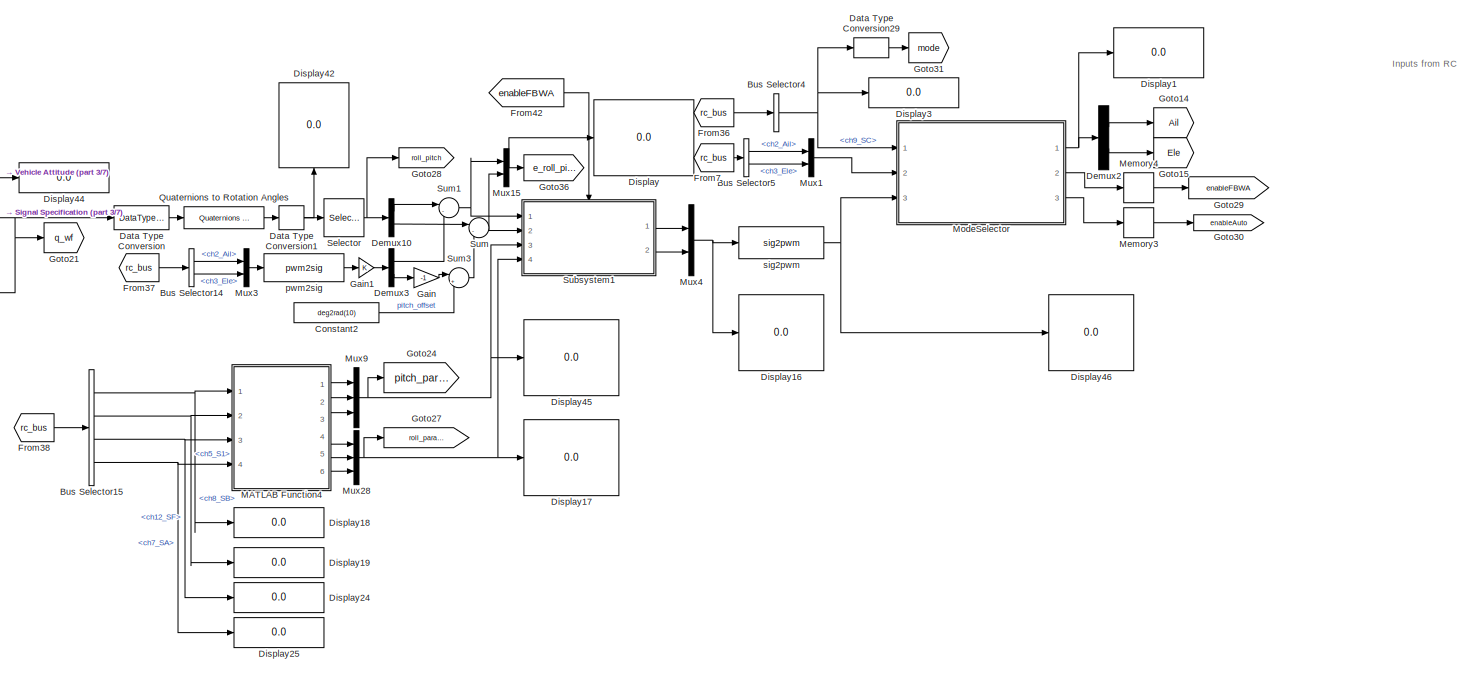
[diagram: root canvas - part 1/7, top left region]
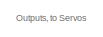
[diagram: root canvas - part 2/7, top right region]
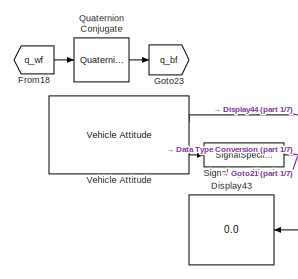
[diagram: root canvas - part 3/7, top left region]
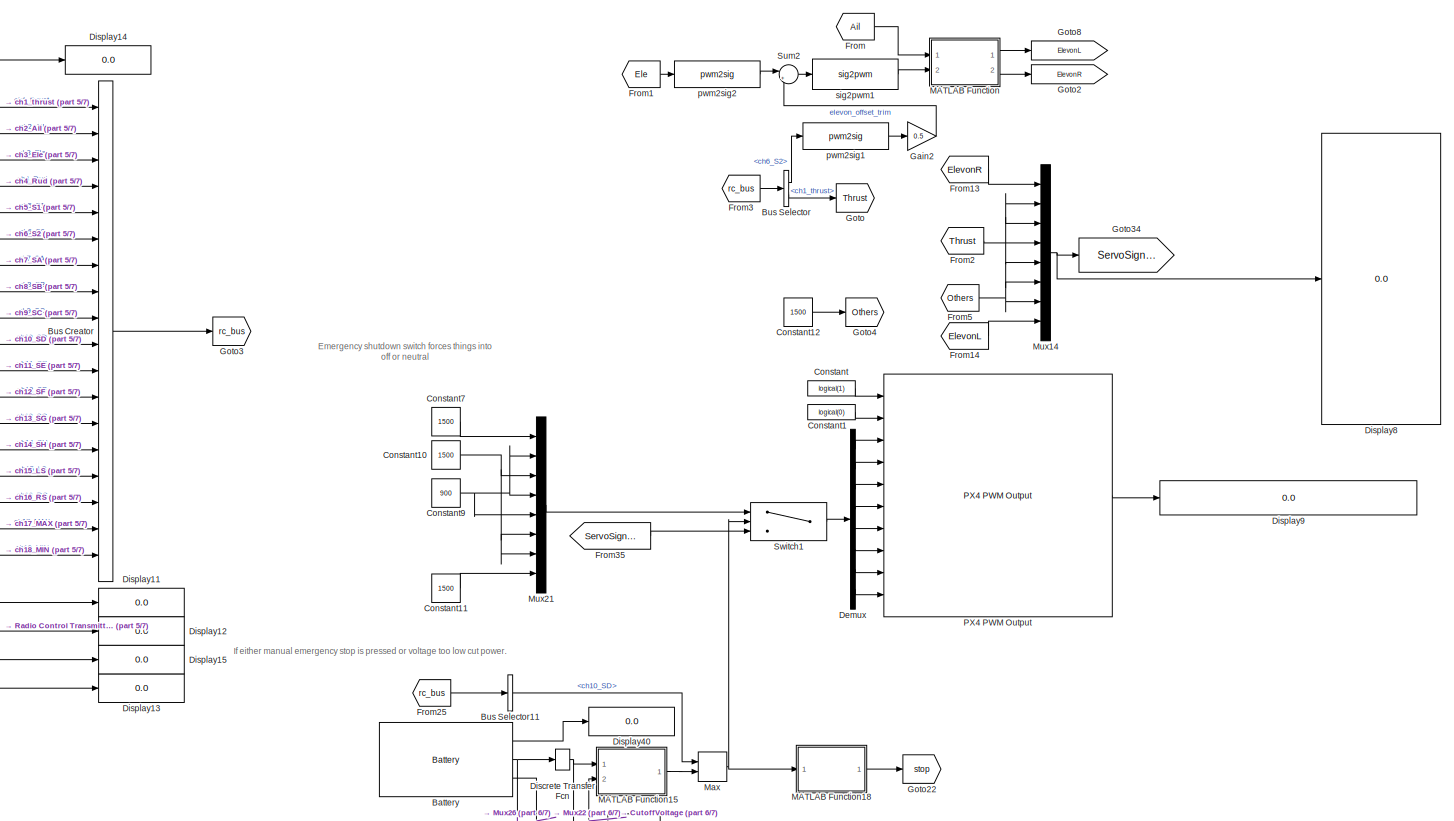
[diagram: root canvas - part 4/7, top right region]
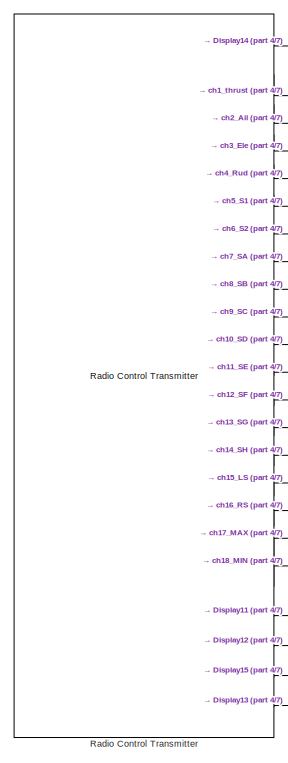
[diagram: root canvas - part 5/7, top center region]
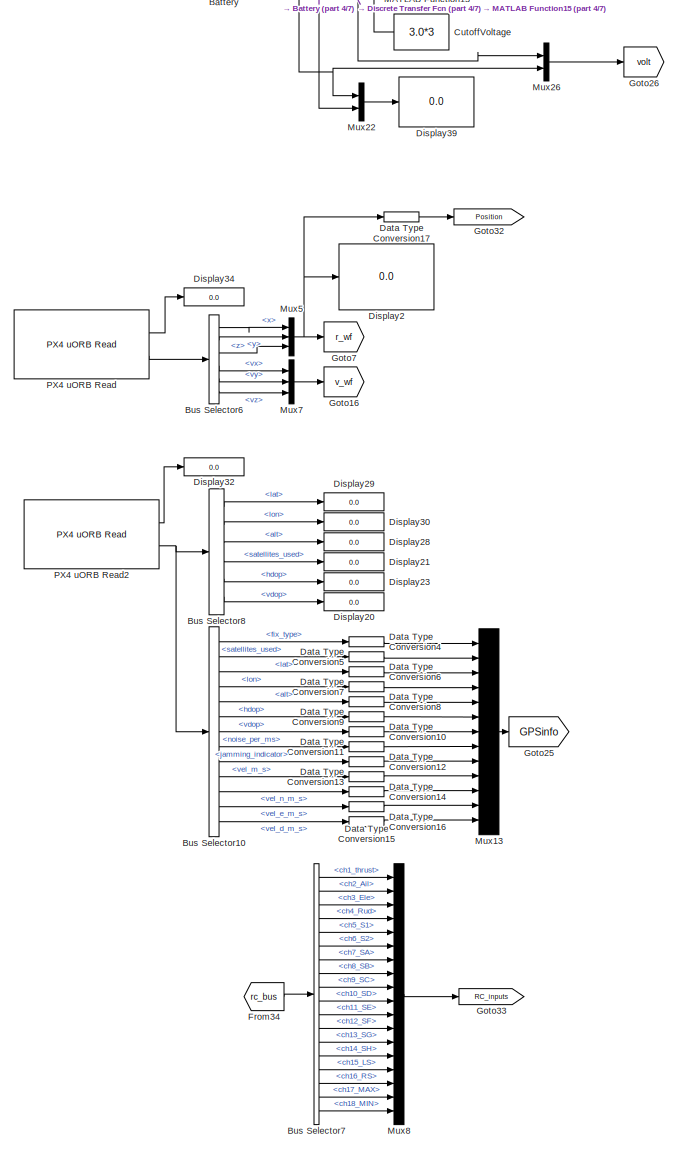
[diagram: root canvas - part 6/7, bottom right region]
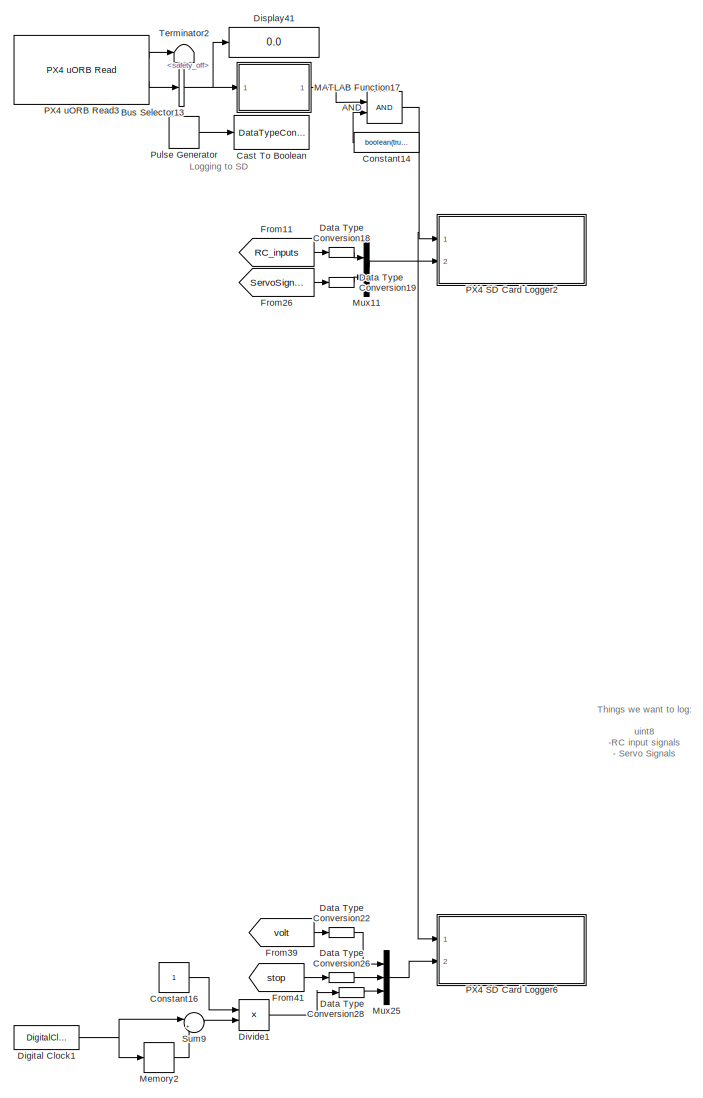
[diagram: root canvas - part 7/7, bottom right region]
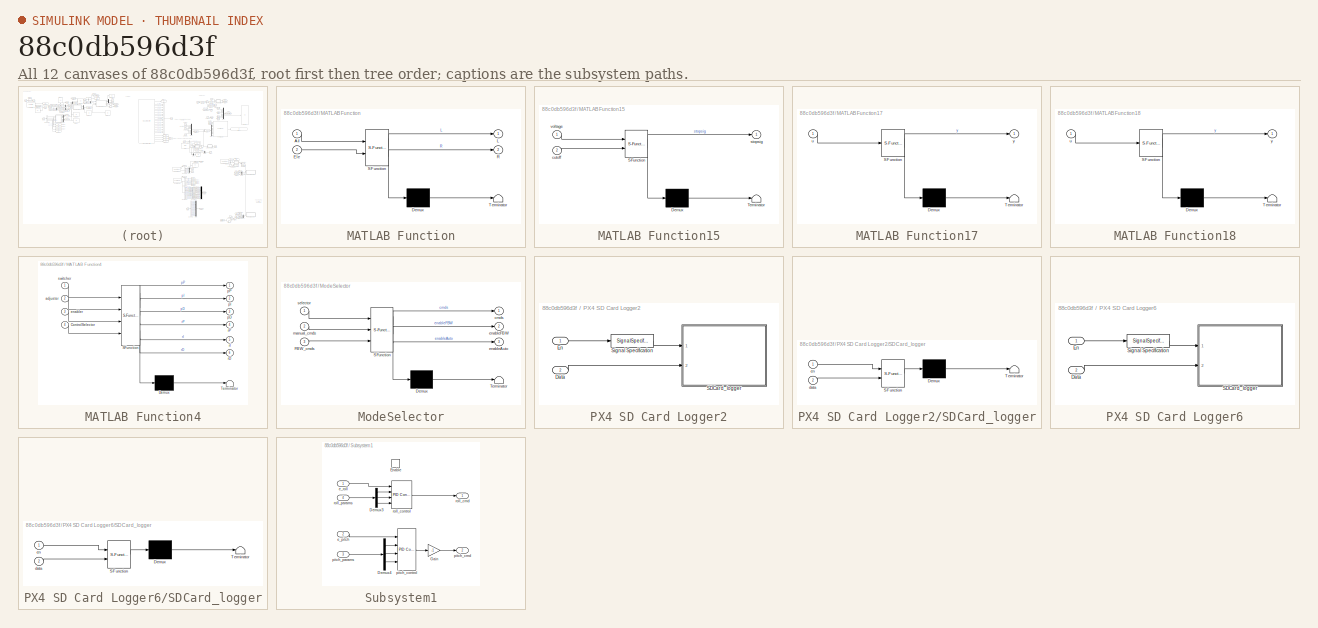
[diagram: thumbnail index - all 12 canvases of the model, root first then tree order]
MODEL slx_88c0db596d3f
KIND model
CONFIG AbsTol = auto
CONFIG EnableMultiTasking = on
CONFIG FixedStep = Ts
CONFIG MaxStep = auto
CONFIG MinStep = auto
CONFIG RelTol = 1e-3
CONFIG SampleTimeConstraint = Unconstrained
CONFIG Solver = FixedStepAuto
CONFIG SolverName = FixedStepAuto
CONFIG StartTime = 0.0
CONFIG StopTime = inf
BLOCK [Logic] AND
  AllPortsSameDT = off
  IconShape = distinctive
  OutDataTypeStr = boolean
  Ports = [2, 1]
BLOCK [Reference] Battery  REF=px4Sensorslib/Battery
  Ports = [0, 3]
  SourceBlock = px4Sensorslib/Battery
  SourceProductName = Embedded Coder Support Package for PX4 Autopilots
  SourceType = PX4 Battery
BLOCK [BusCreator] Bus Creator
  DisplayOption = bar
  InheritFromInputs = on
  Inputs = 18
  Ports = [18, 1]
BLOCK [BusSelector] Bus Selector
  OutputAsBus = off
  OutputSignals = ch6_S2,ch1_thrust
  Ports = [1, 2]
BLOCK [BusSelector] Bus Selector10
  Commented = on
  OutputAsBus = off
  OutputSignals = fix_type,satellites_used,lat,lon,alt,hdop,vdop,noise_per_ms,jamming_indicator,vel_m_s,vel_n_m_s,vel_e_m_s,vel_d_m_s
  Ports = [1, 13]
BLOCK [BusSelector] Bus Selector11
  OutputAsBus = off
  OutputSignals = ch10_SD
  Ports = [1, 1]
BLOCK [BusSelector] Bus Selector13
  OutputAsBus = off
  OutputSignals = safety_off
  Ports = [1, 1]
BLOCK [BusSelector] Bus Selector14
  OutputAsBus = off
  OutputSignals = ch2_Ail,ch3_Ele
  Ports = [1, 2]
BLOCK [BusSelector] Bus Selector15
  OutputAsBus = off
  OutputSignals = ch8_SB,ch5_S1,ch12_SF,ch7_SA
  Ports = [1, 4]
BLOCK [BusSelector] Bus Selector4
  OutputAsBus = off
  OutputSignals = ch9_SC
  Ports = [1, 1]
BLOCK [BusSelector] Bus Selector5
  OutputAsBus = off
  OutputSignals = ch2_Ail,ch3_Ele
  Ports = [1, 2]
BLOCK [BusSelector] Bus Selector6
  OutputAsBus = off
  OutputSignals = x,y,z,vx,vy,vz
  Ports = [1, 6]
BLOCK [BusSelector] Bus Selector7
  OutputAsBus = off
  OutputSignals = ch1_thrust,ch2_Ail,ch3_Ele,ch4_Rud,ch5_S1,ch6_S2,ch7_SA,ch8_SB,ch9_SC,ch10_SD,ch11_SE,ch12_SF,ch13_SG,ch14_SH,ch15_LS,ch16_RS,ch17_MAX,ch18_MIN
  Ports = [1, 18]
BLOCK [BusSelector] Bus Selector8
  Commented = on
  OutputAsBus = off
  OutputSignals = lat,lon,alt,satellites_used,hdop,vdop
  Ports = [1, 6]
BLOCK [DataTypeConversion] Cast To Boolean
  Commented = on
  OutDataTypeStr = boolean
  RndMeth = Floor
  SaturateOnIntegerOverflow = off
BLOCK [Constant] Constant
  Value = logical(1)
BLOCK [Constant] Constant1
  Value = logical(0)
BLOCK [Constant] Constant10
  OutDataTypeStr = uint16
  Value = 1500
BLOCK [Constant] Constant11
  OutDataTypeStr = uint16
  Value = 1500
BLOCK [Constant] Constant12
  OutDataTypeStr = uint16
  SampleTime = Ts
  Value = 1500
BLOCK [Constant] Constant14
  SampleTime = Ts
  Value = boolean(true)
BLOCK [Constant] Constant16
  SampleTime = Ts
BLOCK [Constant] Constant2
  OutDataTypeStr = single
  Value = deg2rad(10)
BLOCK [Constant] Constant7
  OutDataTypeStr = uint16
  Value = 1500
BLOCK [Constant] Constant9
  OutDataTypeStr = uint16
  Value = 900
BLOCK [Constant] CutoffVoltage
  OutDataTypeStr = single
  SampleTime = Ts
  Value = 3.0*3
BLOCK [DataTypeConversion] Data Type Conversion
  OutDataTypeStr = double
  RndMeth = Floor
  SaturateOnIntegerOverflow = off
BLOCK [DataTypeConversion] Data Type Conversion1
  OutDataTypeStr = single
  RndMeth = Floor
  SaturateOnIntegerOverflow = off
BLOCK [DataTypeConversion] Data Type Conversion10
  Commented = on
  OutDataTypeStr = single
  RndMeth = Floor
  SaturateOnIntegerOverflow = off
BLOCK [DataTypeConversion] Data Type Conversion11
  Commented = on
  OutDataTypeStr = single
  RndMeth = Floor
  SaturateOnIntegerOverflow = off
BLOCK [DataTypeConversion] Data Type Conversion12
  Commented = on
  OutDataTypeStr = single
  RndMeth = Floor
  SaturateOnIntegerOverflow = off
BLOCK [DataTypeConversion] Data Type Conversion13
  Commented = on
  OutDataTypeStr = single
  RndMeth = Floor
  SaturateOnIntegerOverflow = off
BLOCK [DataTypeConversion] Data Type Conversion14
  Commented = on
  OutDataTypeStr = single
  RndMeth = Floor
  SaturateOnIntegerOverflow = off
BLOCK [DataTypeConversion] Data Type Conversion15
  Commented = on
  OutDataTypeStr = single
  RndMeth = Floor
  SaturateOnIntegerOverflow = off
BLOCK [DataTypeConversion] Data Type Conversion16
  Commented = on
  OutDataTypeStr = single
  RndMeth = Floor
  SaturateOnIntegerOverflow = off
BLOCK [DataTypeConversion] Data Type Conversion17
  OutDataTypeStr = single
  RndMeth = Floor
  SaturateOnIntegerOverflow = off
BLOCK [DataTypeConversion] Data Type Conversion18
  OutDataTypeStr = uint16
  RndMeth = Floor
  SaturateOnIntegerOverflow = off
BLOCK [DataTypeConversion] Data Type Conversion19
  OutDataTypeStr = uint16
  RndMeth = Floor
  SaturateOnIntegerOverflow = off
BLOCK [DataTypeConversion] Data Type Conversion22
  OutDataTypeStr = single
  RndMeth = Floor
  SaturateOnIntegerOverflow = off
BLOCK [DataTypeConversion] Data Type Conversion26
  OutDataTypeStr = single
  RndMeth = Floor
  SaturateOnIntegerOverflow = off
BLOCK [DataTypeConversion] Data Type Conversion28
  OutDataTypeStr = single
  RndMeth = Floor
  SaturateOnIntegerOverflow = off
BLOCK [DataTypeConversion] Data Type Conversion29
  OutDataTypeStr = single
  RndMeth = Floor
  SaturateOnIntegerOverflow = off
BLOCK [DataTypeConversion] Data Type Conversion4
  Commented = on
  OutDataTypeStr = single
  RndMeth = Floor
  SaturateOnIntegerOverflow = off
BLOCK [DataTypeConversion] Data Type Conversion5
  Commented = on
  OutDataTypeStr = single
  RndMeth = Floor
  SaturateOnIntegerOverflow = off
BLOCK [DataTypeConversion] Data Type Conversion6
  Commented = on
  OutDataTypeStr = single
  RndMeth = Floor
  SaturateOnIntegerOverflow = off
BLOCK [DataTypeConversion] Data Type Conversion7
  Commented = on
  OutDataTypeStr = single
  RndMeth = Floor
  SaturateOnIntegerOverflow = off
BLOCK [DataTypeConversion] Data Type Conversion8
  Commented = on
  OutDataTypeStr = single
  RndMeth = Floor
  SaturateOnIntegerOverflow = off
BLOCK [DataTypeConversion] Data Type Conversion9
  Commented = on
  OutDataTypeStr = single
  RndMeth = Floor
  SaturateOnIntegerOverflow = off
BLOCK [Demux] Demux
  DisplayOption = bar
  Outputs = 8
  Ports = [1, 8]
BLOCK [Demux] Demux10
  DisplayOption = bar
  Outputs = 2
  Ports = [1, 2]
BLOCK [Demux] Demux2
  DisplayOption = bar
  Outputs = 2
  Ports = [1, 2]
BLOCK [Demux] Demux3
  DisplayOption = bar
  Outputs = 2
  Ports = [1, 2]
BLOCK [DigitalClock] Digital Clock1
  SampleTime = Ts
BLOCK [DiscreteTransferFcn] Discrete Transfer Fcn
  Denominator = [1 -0.99]
  InputPortMap = u0
  Numerator = [1-0.99]
  Ports = [1, 1]
  SampleTime = Ts
BLOCK [Display] Display
  Decimation = 1
  Ports = [1]
BLOCK [Display] Display1
  Decimation = 1
  Ports = [1]
BLOCK [Display] Display11
  Decimation = 1
  Ports = [1]
BLOCK [Display] Display12
  Decimation = 1
  Ports = [1]
BLOCK [Display] Display13
  Decimation = 1
  Ports = [1]
BLOCK [Display] Display14
  Decimation = 1
  Ports = [1]
BLOCK [Display] Display15
  Decimation = 1
  Ports = [1]
BLOCK [Display] Display16
  Decimation = 1
  Ports = [1]
BLOCK [Display] Display17
  Decimation = 1
  Ports = [1]
BLOCK [Display] Display18
  Decimation = 1
  Ports = [1]
BLOCK [Display] Display19
  Decimation = 1
  Ports = [1]
BLOCK [Display] Display2
  Decimation = 1
  Ports = [1]
BLOCK [Display] Display20
  Commented = on
  Decimation = 1
  Ports = [1]
BLOCK [Display] Display21
  Commented = on
  Decimation = 1
  Ports = [1]
BLOCK [Display] Display23
  Commented = on
  Decimation = 1
  Ports = [1]
BLOCK [Display] Display24
  Decimation = 1
  Ports = [1]
BLOCK [Display] Display25
  Decimation = 1
  Ports = [1]
BLOCK [Display] Display28
  Commented = on
  Decimation = 1
  Ports = [1]
BLOCK [Display] Display29
  Commented = on
  Decimation = 1
  Ports = [1]
BLOCK [Display] Display3
  Decimation = 1
  Ports = [1]
BLOCK [Display] Display30
  Commented = on
  Decimation = 1
  Ports = [1]
BLOCK [Display] Display32
  Commented = on
  Decimation = 1
  Ports = [1]
BLOCK [Display] Display34
  Decimation = 1
  Ports = [1]
BLOCK [Display] Display39
  Decimation = 1
  Ports = [1]
BLOCK [Display] Display40
  Decimation = 1
  Ports = [1]
BLOCK [Display] Display41
  Decimation = 1
  Ports = [1]
BLOCK [Display] Display42
  Decimation = 1
  Ports = [1]
BLOCK [Display] Display43
  Decimation = 1
  Ports = [1]
BLOCK [Display] Display44
  Decimation = 1
  Ports = [1]
BLOCK [Display] Display45
  Decimation = 1
  Ports = [1]
BLOCK [Display] Display46
  Decimation = 1
  Ports = [1]
BLOCK [Display] Display8
  Decimation = 1
  Ports = [1]
BLOCK [Display] Display9
  Decimation = 1
  Format = binary (Stored Integer)
  Ports = [1]
BLOCK [Product] Divide1
  InputSameDT = off
  Inputs = */
  OutDataTypeStr = Inherit: Inherit via internal rule
  Ports = [2, 1]
  RndMeth = Floor
  SaturateOnIntegerOverflow = off
BLOCK [From] From
  GotoTag = Ail
BLOCK [From] From1
  GotoTag = Ele
BLOCK [From] From11
  GotoTag = RC_inputs
BLOCK [From] From13
  GotoTag = ElevonR
BLOCK [From] From14
  GotoTag = ElevonL
BLOCK [From] From18
  GotoTag = q_wf
BLOCK [From] From2
  GotoTag = Thrust
BLOCK [From] From25
  GotoTag = rc_bus
BLOCK [From] From26
  GotoTag = ServoSignals
BLOCK [From] From3
  GotoTag = rc_bus
BLOCK [From] From34
  GotoTag = rc_bus
BLOCK [From] From35
  GotoTag = ServoSignals
BLOCK [From] From36
  GotoTag = rc_bus
BLOCK [From] From37
  GotoTag = rc_bus
BLOCK [From] From38
  GotoTag = rc_bus
BLOCK [From] From39
  GotoTag = volt
BLOCK [From] From41
  GotoTag = stop
BLOCK [From] From42
  GotoTag = enableFBWA
BLOCK [From] From5
  GotoTag = Others
BLOCK [From] From7
  GotoTag = rc_bus
BLOCK [Gain] Gain
  Gain = -1
  OutDataTypeStr = Inherit: Inherit via internal rule
  ParamDataTypeStr = Inherit: Inherit via internal rule
  SaturateOnIntegerOverflow = off
BLOCK [Gain] Gain1
  OutDataTypeStr = Inherit: Inherit via internal rule
  ParamDataTypeStr = Inherit: Inherit via internal rule
  SaturateOnIntegerOverflow = off
BLOCK [Gain] Gain2
  Gain = 0.5
  OutDataTypeStr = Inherit: Inherit via internal rule
  ParamDataTypeStr = Inherit: Inherit via internal rule
  SaturateOnIntegerOverflow = off
BLOCK [Goto] Goto
  GotoTag = Thrust
BLOCK [Goto] Goto14
  GotoTag = Ail
BLOCK [Goto] Goto15
  GotoTag = Ele
BLOCK [Goto] Goto16
  GotoTag = v_wf
BLOCK [Goto] Goto2
  GotoTag = ElevonR
BLOCK [Goto] Goto21
  GotoTag = q_wf
BLOCK [Goto] Goto22
  GotoTag = stop
BLOCK [Goto] Goto23
  GotoTag = q_bf
BLOCK [Goto] Goto24
  GotoTag = pitch_params
BLOCK [Goto] Goto25
  Commented = on
  GotoTag = GPSinfo
BLOCK [Goto] Goto26
  GotoTag = volt
BLOCK [Goto] Goto27
  GotoTag = roll_params
BLOCK [Goto] Goto28
  GotoTag = roll_pitch
BLOCK [Goto] Goto29
  GotoTag = enableFBWA
BLOCK [Goto] Goto3
  GotoTag = rc_bus
BLOCK [Goto] Goto30
  GotoTag = enableAuto
BLOCK [Goto] Goto31
  GotoTag = mode
BLOCK [Goto] Goto32
  GotoTag = Position
BLOCK [Goto] Goto33
  GotoTag = RC_inputs
BLOCK [Goto] Goto34
  GotoTag = ServoSignals
BLOCK [Goto] Goto36
  GotoTag = e_roll_pitch
BLOCK [Goto] Goto4
  GotoTag = Others
BLOCK [Goto] Goto7
  GotoTag = r_wf
BLOCK [Goto] Goto8
  GotoTag = ElevonL
BLOCK [SubSystem] MATLAB Function
  ErrorFcn = Stateflow.Translate.translate
  PermitHierarchicalResolution = ExplicitOnly
  Ports = [2, 2]
  RequestExecContextInheritance = off
  SFBlockType = MATLAB Function
  TreatAsAtomicUnit = on
BLOCK [Demux] MATLAB Function/ Demux 
  Outputs = 1
  Ports = [1, 1]
BLOCK [S-Function] MATLAB Function/ SFunction 
  EnableBusSupport = on
  FunctionName = sf_sfun
  PortCounts = [2 3]
  Ports = [2, 3]
  SFcnIsStateOwnerBlock = off
  SFunctionDeploymentMode = off
  Tag = Stateflow S-Function FlyingBoard_1engine 2
BLOCK [Terminator] MATLAB Function/ Terminator 
BLOCK [Inport] MATLAB Function/Ail
  IconDisplay = Port number
BLOCK [Inport] MATLAB Function/Ele
  IconDisplay = Port number
  Port = 2
BLOCK [Outport] MATLAB Function/L
  IconDisplay = Port number
BLOCK [Outport] MATLAB Function/R
  IconDisplay = Port number
  Port = 2
BLOCK [SubSystem] MATLAB Function15
  ErrorFcn = Stateflow.Translate.translate
  PermitHierarchicalResolution = ExplicitOnly
  Ports = [2, 1]
  RequestExecContextInheritance = off
  SFBlockType = MATLAB Function
  TreatAsAtomicUnit = on
BLOCK [Demux] MATLAB Function15/ Demux 
  Outputs = 1
  Ports = [1, 1]
BLOCK [S-Function] MATLAB Function15/ SFunction 
  EnableBusSupport = on
  FunctionName = sf_sfun
  PortCounts = [2 2]
  Ports = [2, 2]
  SFcnIsStateOwnerBlock = off
  SFunctionDeploymentMode = off
  Tag = Stateflow S-Function FlyingBoard_1engine 20
BLOCK [Terminator] MATLAB Function15/ Terminator 
BLOCK [Inport] MATLAB Function15/cutoff
  IconDisplay = Port number
  Port = 2
BLOCK [Outport] MATLAB Function15/stopsig
  IconDisplay = Port number
BLOCK [Inport] MATLAB Function15/voltage
  IconDisplay = Port number
BLOCK [SubSystem] MATLAB Function17
  ErrorFcn = Stateflow.Translate.translate
  PermitHierarchicalResolution = ExplicitOnly
  Ports = [1, 1]
  RequestExecContextInheritance = off
  SFBlockType = MATLAB Function
  TreatAsAtomicUnit = on
BLOCK [Demux] MATLAB Function17/ Demux 
  Outputs = 1
  Ports = [1, 1]
BLOCK [S-Function] MATLAB Function17/ SFunction 
  EnableBusSupport = on
  FunctionName = sf_sfun
  PortCounts = [1 2]
  Ports = [1, 2]
  SFcnIsStateOwnerBlock = off
  SFunctionDeploymentMode = off
  Tag = Stateflow S-Function FlyingBoard_1engine 25
BLOCK [Terminator] MATLAB Function17/ Terminator 
BLOCK [Inport] MATLAB Function17/u
  IconDisplay = Port number
BLOCK [Outport] MATLAB Function17/y
  IconDisplay = Port number
BLOCK [SubSystem] MATLAB Function18
  ErrorFcn = Stateflow.Translate.translate
  PermitHierarchicalResolution = ExplicitOnly
  Ports = [1, 1]
  RequestExecContextInheritance = off
  SFBlockType = MATLAB Function
  TreatAsAtomicUnit = on
BLOCK [Demux] MATLAB Function18/ Demux 
  Outputs = 1
  Ports = [1, 1]
BLOCK [S-Function] MATLAB Function18/ SFunction 
  EnableBusSupport = on
  FunctionName = sf_sfun
  PortCounts = [1 2]
  Ports = [1, 2]
  SFcnIsStateOwnerBlock = off
  SFunctionDeploymentMode = off
  Tag = Stateflow S-Function FlyingBoard_1engine 27
BLOCK [Terminator] MATLAB Function18/ Terminator 
BLOCK [Inport] MATLAB Function18/u
  IconDisplay = Port number
BLOCK [Outport] MATLAB Function18/y
  IconDisplay = Port number
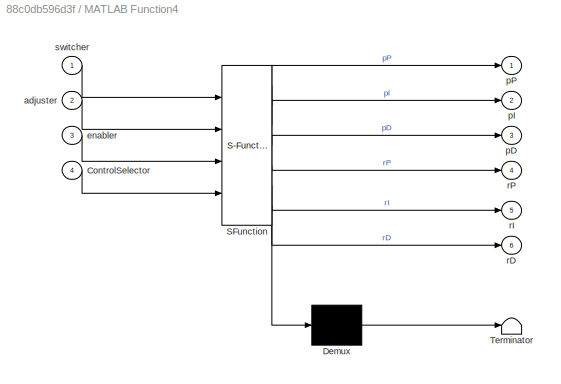
BLOCK [SubSystem] MATLAB Function4
  ErrorFcn = Stateflow.Translate.translate
  PermitHierarchicalResolution = ExplicitOnly
  Ports = [4, 6]
  RequestExecContextInheritance = off
  SFBlockType = MATLAB Function
  TreatAsAtomicUnit = on
BLOCK [Demux] MATLAB Function4/ Demux 
  Outputs = 1
  Ports = [1, 1]
BLOCK [S-Function] MATLAB Function4/ SFunction 
  EnableBusSupport = on
  FunctionName = sf_sfun
  PortCounts = [4 7]
  Ports = [4, 7]
  SFcnIsStateOwnerBlock = off
  SFunctionDeploymentMode = off
  Tag = Stateflow S-Function FlyingBoard_1engine 5
BLOCK [Terminator] MATLAB Function4/ Terminator 
BLOCK [Inport] MATLAB Function4/ControlSelector
  IconDisplay = Port number
  Port = 4
BLOCK [Inport] MATLAB Function4/adjuster
  IconDisplay = Port number
  Port = 2
BLOCK [Inport] MATLAB Function4/enabler
  IconDisplay = Port number
  Port = 3
BLOCK [Outport] MATLAB Function4/pD
  IconDisplay = Port number
  Port = 3
BLOCK [Outport] MATLAB Function4/pI
  IconDisplay = Port number
  Port = 2
BLOCK [Outport] MATLAB Function4/pP
  IconDisplay = Port number
BLOCK [Outport] MATLAB Function4/rD
  IconDisplay = Port number
  Port = 6
BLOCK [Outport] MATLAB Function4/rI
  IconDisplay = Port number
  Port = 5
BLOCK [Outport] MATLAB Function4/rP
  IconDisplay = Port number
  Port = 4
BLOCK [Inport] MATLAB Function4/switcher
  IconDisplay = Port number
BLOCK [MinMax] Max
  Function = max
  InputSameDT = off
  Inputs = 2
  OutDataTypeStr = uint16
  Ports = [2, 1]
  SaturateOnIntegerOverflow = off
BLOCK [Memory] Memory2
  InheritSampleTime = on
BLOCK [Memory] Memory3
  InheritSampleTime = on
BLOCK [Memory] Memory4
  InheritSampleTime = on
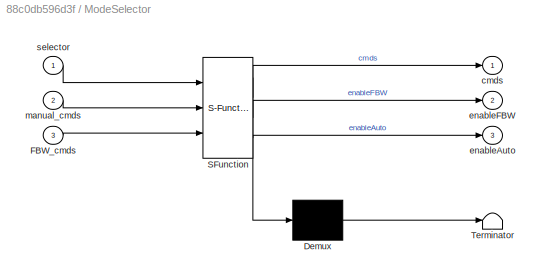
BLOCK [SubSystem] ModeSelector
  ErrorFcn = Stateflow.Translate.translate
  PermitHierarchicalResolution = ExplicitOnly
  Ports = [3, 3]
  RequestExecContextInheritance = off
  SFBlockType = MATLAB Function
  TreatAsAtomicUnit = on
BLOCK [Demux] ModeSelector/ Demux 
  Outputs = 1
  Ports = [1, 1]
BLOCK [S-Function] ModeSelector/ SFunction 
  EnableBusSupport = on
  FunctionName = sf_sfun
  PortCounts = [3 4]
  Ports = [3, 4]
  SFcnIsStateOwnerBlock = off
  SFunctionDeploymentMode = off
  Tag = Stateflow S-Function FlyingBoard_1engine 7
BLOCK [Terminator] ModeSelector/ Terminator 
BLOCK [Inport] ModeSelector/FBW_cmds
  IconDisplay = Port number
  Port = 3
BLOCK [Outport] ModeSelector/cmds
  IconDisplay = Port number
BLOCK [Outport] ModeSelector/enableAuto
  IconDisplay = Port number
  Port = 3
BLOCK [Outport] ModeSelector/enableFBW
  IconDisplay = Port number
  Port = 2
BLOCK [Inport] ModeSelector/manual_cmds
  IconDisplay = Port number
  Port = 2
BLOCK [Inport] ModeSelector/selector
  IconDisplay = Port number
BLOCK [Mux] Mux1
  DisplayOption = bar
  Inputs = 2
  Ports = [2, 1]
BLOCK [Mux] Mux11
  DisplayOption = bar
  Inputs = 2
  Ports = [2, 1]
BLOCK [Mux] Mux13
  Commented = on
  DisplayOption = bar
  Inputs = 13
  Ports = [13, 1]
BLOCK [Mux] Mux14
  DisplayOption = bar
  Inputs = 8
  Ports = [8, 1]
BLOCK [Mux] Mux15
  DisplayOption = bar
  Inputs = 2
  Ports = [2, 1]
BLOCK [Mux] Mux21
  DisplayOption = bar
  Inputs = 8
  Ports = [8, 1]
BLOCK [Mux] Mux22
  DisplayOption = bar
  Inputs = 2
  Ports = [2, 1]
BLOCK [Mux] Mux25
  DisplayOption = bar
  Inputs = 3
  Ports = [3, 1]
BLOCK [Mux] Mux26
  DisplayOption = bar
  Inputs = 2
  Ports = [2, 1]
BLOCK [Mux] Mux28
  DisplayOption = bar
  Inputs = 3
  Ports = [3, 1]
BLOCK [Mux] Mux3
  DisplayOption = bar
  Inputs = 2
  Ports = [2, 1]
BLOCK [Mux] Mux4
  DisplayOption = bar
  Inputs = 2
  Ports = [2, 1]
BLOCK [Mux] Mux5
  DisplayOption = bar
  Inputs = 3
  Ports = [3, 1]
BLOCK [Mux] Mux7
  DisplayOption = bar
  Inputs = 3
  Ports = [3, 1]
BLOCK [Mux] Mux8
  DisplayOption = bar
  Inputs = 18
  Ports = [18, 1]
BLOCK [Mux] Mux9
  DisplayOption = bar
  Inputs = 3
  Ports = [3, 1]
BLOCK [Reference] PX4 PWM Output  REF=px4lib/PX4 PWM Output
  Ports = [10, 1]
  SourceBlock = px4lib/PX4 PWM Output
  SourceProductName = Embedded Coder Support Package for PX4 Autopilots
  SourceType = PX4 PWM Output
BLOCK [SubSystem] PX4 SD Card Logger2
  Ports = [2]
  RequestExecContextInheritance = off
BLOCK [Inport] PX4 SD Card Logger2/Data
  IconDisplay = Port number
  Port = 2
BLOCK [Inport] PX4 SD Card Logger2/En
  IconDisplay = Port number
BLOCK [SubSystem] PX4 SD Card Logger2/SDCard_logger
  ErrorFcn = Stateflow.Translate.translate
  PermitHierarchicalResolution = ExplicitOnly
  Ports = [2]
  RequestExecContextInheritance = off
  SFBlockType = MATLAB Function
  TreatAsAtomicUnit = on
BLOCK [Demux] PX4 SD Card Logger2/SDCard_logger/ Demux 
  Outputs = 1
  Ports = [1, 1]
BLOCK [S-Function] PX4 SD Card Logger2/SDCard_logger/ SFunction 
  EnableBusSupport = on
  FunctionName = sf_sfun
  Parameters = cacheflag,logname,numRecs
  PortCounts = [2 1]
  Ports = [2, 1]
  SFcnIsStateOwnerBlock = off
  SFunctionDeploymentMode = off
  Tag = Stateflow S-Function FlyingBoard_1engine 12
BLOCK [Terminator] PX4 SD Card Logger2/SDCard_logger/ Terminator 
BLOCK [Inport] PX4 SD Card Logger2/SDCard_logger/data
  IconDisplay = Port number
  Port = 2
BLOCK [Inport] PX4 SD Card Logger2/SDCard_logger/en
  IconDisplay = Port number
BLOCK [SignalSpecification] PX4 SD Card Logger2/Signal Specification
  OutDataTypeStr = boolean
BLOCK [SubSystem] PX4 SD Card Logger6
  Ports = [2]
  RequestExecContextInheritance = off
BLOCK [Inport] PX4 SD Card Logger6/Data
  IconDisplay = Port number
  Port = 2
BLOCK [Inport] PX4 SD Card Logger6/En
  IconDisplay = Port number
BLOCK [SubSystem] PX4 SD Card Logger6/SDCard_logger
  ErrorFcn = Stateflow.Translate.translate
  PermitHierarchicalResolution = ExplicitOnly
  Ports = [2]
  RequestExecContextInheritance = off
  SFBlockType = MATLAB Function
  TreatAsAtomicUnit = on
BLOCK [Demux] PX4 SD Card Logger6/SDCard_logger/ Demux 
  Outputs = 1
  Ports = [1, 1]
BLOCK [S-Function] PX4 SD Card Logger6/SDCard_logger/ SFunction 
  EnableBusSupport = on
  FunctionName = sf_sfun
  Parameters = cacheflag,logname,numRecs
  PortCounts = [2 1]
  Ports = [2, 1]
  SFcnIsStateOwnerBlock = off
  SFunctionDeploymentMode = off
  Tag = Stateflow S-Function FlyingBoard_1engine 26
BLOCK [Terminator] PX4 SD Card Logger6/SDCard_logger/ Terminator 
BLOCK [Inport] PX4 SD Card Logger6/SDCard_logger/data
  IconDisplay = Port number
  Port = 2
BLOCK [Inport] PX4 SD Card Logger6/SDCard_logger/en
  IconDisplay = Port number
BLOCK [SignalSpecification] PX4 SD Card Logger6/Signal Specification
  OutDataTypeStr = boolean
BLOCK [Reference] PX4 uORB Read  REF=px4uORBlib/PX4 uORB Read
  Ports = [0, 2]
  SourceBlock = px4uORBlib/PX4 uORB Read
  SourceProductName = Embedded Coder Support Package for PX4 Autopilots
  SourceType = PX4 uORB Read
BLOCK [Reference] PX4 uORB Read2  REF=px4uORBlib/PX4 uORB Read
  Commented = on
  Ports = [0, 2]
  SourceBlock = px4uORBlib/PX4 uORB Read
  SourceProductName = Embedded Coder Support Package for PX4 Autopilots
  SourceType = PX4 uORB Read
BLOCK [Reference] PX4 uORB Read3  REF=px4uORBlib/PX4 uORB Read
  Ports = [0, 2]
  SourceBlock = px4uORBlib/PX4 uORB Read
  SourceProductName = Embedded Coder Support Package for PX4 Autopilots
  SourceType = PX4 uORB Read
BLOCK [DiscretePulseGenerator] Pulse Generator
  Commented = on
  Ports = [0, 1]
  SampleTime = Ts
BLOCK [Reference] Quaternion Conjugate  REF=aerolibutil/Quaternion
Conjugate
  Ports = [1, 1]
  SourceBlock = aerolibutil/Quaternion\nConjugate
  SourceProductBaseCode = AE
  SourceProductName = Aerospace Blockset
  SourceType = Quaternion Conjugate
BLOCK [Reference] Quaternions to Rotation Angles  REF=sharedtransform/Quaternions to Rotation Angles
  AttributesFormatString = Rotation Order: %<rotationOrder>
  Ports = [1, 1]
  SourceBlock = sharedtransform/Quaternions to Rotation Angles
  SourceProductBaseCode = AE
  SourceProductName = Aerospace Blockset
  SourceType = Quat2Ang
BLOCK [Reference] Radio Control Transmitter  REF=px4Sensorslib/Radio Control Transmitter
  Ports = [0, 23]
  SourceBlock = px4Sensorslib/Radio Control Transmitter
  SourceProductName = Embedded Coder Support Package for PX4 Autopilots
  SourceType = PX4 Radio Control Transmitter
BLOCK [Selector] Selector
  IndexOptions = Index vector (dialog)
  Indices = [3 2]
  InputPortWidth = 3
  OutputSizes = 1
  Ports = [1, 1]
BLOCK [SignalSpecification] Signal Specification
  OutDataTypeStr = single
BLOCK [SubSystem] Subsystem1
  Ports = [4, 2, 1]
  RequestExecContextInheritance = off
BLOCK [Demux] Subsystem1/Demux3
  DisplayOption = bar
  Outputs = 3
  Ports = [1, 3]
BLOCK [Demux] Subsystem1/Demux4
  DisplayOption = bar
  Outputs = 3
  Ports = [1, 3]
BLOCK [EnablePort] Subsystem1/Enable
  Ports = []
BLOCK [Gain] Subsystem1/Gain
  Gain = -1
  OutDataTypeStr = Inherit: Inherit via internal rule
  ParamDataTypeStr = Inherit: Inherit via internal rule
  SaturateOnIntegerOverflow = off
BLOCK [Inport] Subsystem1/e_pitch
  IconDisplay = Port number
  Port = 2
BLOCK [Inport] Subsystem1/e_roll
  IconDisplay = Port number
BLOCK [Outport] Subsystem1/pitch_cmd
  IconDisplay = Port number
  Port = 2
BLOCK [Reference] Subsystem1/pitch_control  REF=simulink/Continuous/PID Controller
  Ports = [4, 1]
  SourceBlock = simulink/Continuous/PID Controller
  SourceProductBaseCode = SL
  SourceProductName = Simulink
  SourceType = PID 1dof
BLOCK [Inport] Subsystem1/pitch_params
  IconDisplay = Port number
  Port = 3
BLOCK [Outport] Subsystem1/roll_cmd
  IconDisplay = Port number
BLOCK [Reference] Subsystem1/roll_control  REF=simulink/Continuous/PID Controller
  Ports = [4, 1]
  SourceBlock = simulink/Continuous/PID Controller
  SourceProductBaseCode = SL
  SourceProductName = Simulink
  SourceType = PID 1dof
BLOCK [Inport] Subsystem1/roll_params
  IconDisplay = Port number
  Port = 4
BLOCK [Sum] Sum
  IconShape = round
  InputSameDT = off
  Inputs = |-+
  OutDataTypeStr = Inherit: Inherit via internal rule
  Ports = [2, 1]
  SaturateOnIntegerOverflow = off
BLOCK [Sum] Sum1
  IconShape = round
  InputSameDT = off
  Inputs = |-+
  OutDataTypeStr = Inherit: Inherit via internal rule
  Ports = [2, 1]
  SaturateOnIntegerOverflow = off
BLOCK [Sum] Sum2
  IconShape = round
  InputSameDT = off
  Inputs = |++
  OutDataTypeStr = Inherit: Inherit via internal rule
  Ports = [2, 1]
  SaturateOnIntegerOverflow = off
BLOCK [Sum] Sum3
  IconShape = round
  InputSameDT = off
  Inputs = |++
  OutDataTypeStr = Inherit: Inherit via internal rule
  Ports = [2, 1]
  SaturateOnIntegerOverflow = off
BLOCK [Sum] Sum9
  IconShape = round
  InputSameDT = off
  Inputs = |+-
  OutDataTypeStr = Inherit: Inherit via internal rule
  Ports = [2, 1]
  SaturateOnIntegerOverflow = off
BLOCK [Switch] Switch1
  Criteria = u2 > Threshold
  InputSameDT = off
  SaturateOnIntegerOverflow = off
  Threshold = 1300
BLOCK [Terminator] Terminator2
BLOCK [Reference] Vehicle Attitude  REF=px4Sensorslib/Vehicle Attitude
  Ports = [0, 2]
  SourceBlock = px4Sensorslib/Vehicle Attitude
  SourceProductName = Embedded Coder Support Package for PX4 Autopilots
  SourceType = PX4 Vehicle Attitude
BLOCK [Reference] pwm2sig  REF=pwm_sig_converters/pwm2sig  (lib defined in slx_dde5e424b53f)
  Ports = [1, 1]
  SourceBlock = pwm_sig_converters/pwm2sig
  SourceType = SubSystem
BLOCK [Reference] pwm2sig1  REF=pwm_sig_converters/pwm2sig  (lib defined in slx_dde5e424b53f)
  Ports = [1, 1]
  SourceBlock = pwm_sig_converters/pwm2sig
  SourceType = SubSystem
BLOCK [Reference] pwm2sig2  REF=pwm_sig_converters/pwm2sig  (lib defined in slx_dde5e424b53f)
  Ports = [1, 1]
  SourceBlock = pwm_sig_converters/pwm2sig
  SourceType = SubSystem
BLOCK [Reference] sig2pwm  REF=pwm_sig_converters/sig2pwm  (lib defined in slx_dde5e424b53f)
  Ports = [1, 1]
  SourceBlock = pwm_sig_converters/sig2pwm
  SourceType = SubSystem
BLOCK [Reference] sig2pwm1  REF=pwm_sig_converters/sig2pwm  (lib defined in slx_dde5e424b53f)
  Ports = [1, 1]
  SourceBlock = pwm_sig_converters/sig2pwm
  SourceType = SubSystem
ANNOTATION (root): Emergency shutdown switch forces things into off or neutral
ANNOTATION (root): If either manual emergency stop is pressed or voltage too low cut power.
ANNOTATION (root): Inputs from RC
ANNOTATION (root): Logging to SD
ANNOTATION (root): Outputs, to Servos
ANNOTATION (root): Things we want to log: uint8 -RC input signals - Servo Signals single - Mode - Attitude - Position - GPS info - Pid signals (with errors)
NET AND:1 -> PX4 SD Card Logger2:1, PX4 SD Card Logger6:1
LINE Battery:1 -> Display40:1
NET Battery:2 -> Discrete Transfer Fcn:1, Mux22:1, Mux26:2
LINE Battery:3 -> Mux22:2
LINE Bus Creator:1 -> Goto3:1
LINE Bus Selector10:1 -> Data Type Conversion4:1
LINE Bus Selector10:10 -> Data Type Conversion13:1
LINE Bus Selector10:11 -> Data Type Conversion14:1
LINE Bus Selector10:12 -> Data Type Conversion15:1
LINE Bus Selector10:13 -> Data Type Conversion16:1
LINE Bus Selector10:2 -> Data Type Conversion5:1
LINE Bus Selector10:3 -> Data Type Conversion6:1
LINE Bus Selector10:4 -> Data Type Conversion7:1
LINE Bus Selector10:5 -> Data Type Conversion8:1
LINE Bus Selector10:6 -> Data Type Conversion9:1
LINE Bus Selector10:7 -> Data Type Conversion10:1
LINE Bus Selector10:8 -> Data Type Conversion11:1
LINE Bus Selector10:9 -> Data Type Conversion12:1
LINE Bus Selector11:1 -> Max:1
NET Bus Selector13:1 -> Display41:1, MATLAB Function17:1
LINE Bus Selector14:1 -> Mux3:1
LINE Bus Selector14:2 -> Mux3:2
NET Bus Selector15:1 -> Display18:1, MATLAB Function4:1
NET Bus Selector15:2 -> Display19:1, MATLAB Function4:2
NET Bus Selector15:3 -> Display24:1, MATLAB Function4:3
NET Bus Selector15:4 -> Display25:1, MATLAB Function4:4
NET Bus Selector4:1 -> Data Type Conversion29:1, Display3:1, ModeSelector:1
LINE Bus Selector5:1 -> Mux1:1
LINE Bus Selector5:2 -> Mux1:2
LINE Bus Selector6:1 -> Mux5:1
LINE Bus Selector6:2 -> Mux5:2
LINE Bus Selector6:3 -> Mux5:3
LINE Bus Selector6:4 -> Mux7:1
LINE Bus Selector6:5 -> Mux7:2
LINE Bus Selector6:6 -> Mux7:3
LINE Bus Selector7:1 -> Mux8:1
LINE Bus Selector7:10 -> Mux8:10
LINE Bus Selector7:11 -> Mux8:11
LINE Bus Selector7:12 -> Mux8:12
LINE Bus Selector7:13 -> Mux8:13
LINE Bus Selector7:14 -> Mux8:14
LINE Bus Selector7:15 -> Mux8:15
LINE Bus Selector7:16 -> Mux8:16
LINE Bus Selector7:17 -> Mux8:17
LINE Bus Selector7:18 -> Mux8:18
LINE Bus Selector7:2 -> Mux8:2
LINE Bus Selector7:3 -> Mux8:3
LINE Bus Selector7:4 -> Mux8:4
LINE Bus Selector7:5 -> Mux8:5
LINE Bus Selector7:6 -> Mux8:6
LINE Bus Selector7:7 -> Mux8:7
LINE Bus Selector7:8 -> Mux8:8
LINE Bus Selector7:9 -> Mux8:9
LINE Bus Selector8:1 -> Display29:1
LINE Bus Selector8:2 -> Display30:1
LINE Bus Selector8:3 -> Display28:1
LINE Bus Selector8:4 -> Display21:1
LINE Bus Selector8:5 -> Display23:1
LINE Bus Selector8:6 -> Display20:1
LINE Bus Selector:1 -> pwm2sig1:1
LINE Bus Selector:2 -> Goto:1
NET Constant10:1 -> Mux21:3, Mux21:6, Mux21:7
LINE Constant11:1 -> Mux21:8
LINE Constant12:1 -> Goto4:1
LINE Constant14:1 -> AND:2
LINE Constant16:1 -> Divide1:1
LINE Constant1:1 -> PX4 PWM Output:2
LINE Constant2:1 -> Sum3:2
LINE Constant7:1 -> Mux21:1
NET Constant9:1 -> Mux21:2, Mux21:4, Mux21:5
LINE Constant:1 -> PX4 PWM Output:1
LINE CutoffVoltage:1 -> MATLAB Function15:2
LINE Data Type Conversion10:1 -> Mux13:7
LINE Data Type Conversion11:1 -> Mux13:8
LINE Data Type Conversion12:1 -> Mux13:9
LINE Data Type Conversion13:1 -> Mux13:10
LINE Data Type Conversion14:1 -> Mux13:11
LINE Data Type Conversion15:1 -> Mux13:12
LINE Data Type Conversion16:1 -> Mux13:13
LINE Data Type Conversion17:1 -> Goto32:1
LINE Data Type Conversion18:1 -> Mux11:1
LINE Data Type Conversion19:1 -> Mux11:2
NET Data Type Conversion1:1 -> Display42:1, Selector:1
LINE Data Type Conversion22:1 -> Mux25:1
LINE Data Type Conversion26:1 -> Mux25:2
LINE Data Type Conversion28:1 -> Mux25:3
LINE Data Type Conversion29:1 -> Goto31:1
LINE Data Type Conversion4:1 -> Mux13:1
LINE Data Type Conversion5:1 -> Mux13:2
LINE Data Type Conversion6:1 -> Mux13:3
LINE Data Type Conversion7:1 -> Mux13:4
LINE Data Type Conversion8:1 -> Mux13:5
LINE Data Type Conversion9:1 -> Mux13:6
LINE Data Type Conversion:1 -> Quaternions to Rotation Angles:1
LINE Demux10:1 -> Sum1:1
LINE Demux10:2 -> Sum:1
LINE Demux2:1 -> Goto14:1
LINE Demux2:2 -> Goto15:1
LINE Demux3:1 -> Sum1:2
LINE Demux3:2 -> Gain:1
LINE Demux:1 -> PX4 PWM Output:3
LINE Demux:2 -> PX4 PWM Output:4
LINE Demux:3 -> PX4 PWM Output:5
LINE Demux:4 -> PX4 PWM Output:6
LINE Demux:5 -> PX4 PWM Output:7
LINE Demux:6 -> PX4 PWM Output:8
LINE Demux:7 -> PX4 PWM Output:9
LINE Demux:8 -> PX4 PWM Output:10
NET Digital Clock1:1 -> Memory2:1, Sum9:1
NET Discrete Transfer Fcn:1 -> MATLAB Function15:1, Mux26:1
LINE Divide1:1 -> Data Type Conversion28:1
LINE From11:1 -> Data Type Conversion18:1
LINE From13:1 -> Mux14:1
LINE From14:1 -> Mux14:8
LINE From18:1 -> Quaternion Conjugate:1
LINE From1:1 -> pwm2sig2:1
LINE From25:1 -> Bus Selector11:1
LINE From26:1 -> Data Type Conversion19:1
LINE From2:1 -> Mux14:4
LINE From34:1 -> Bus Selector7:1
LINE From35:1 -> Switch1:3
LINE From36:1 -> Bus Selector4:1
LINE From37:1 -> Bus Selector14:1
LINE From38:1 -> Bus Selector15:1
LINE From39:1 -> Data Type Conversion22:1
LINE From3:1 -> Bus Selector:1
LINE From41:1 -> Data Type Conversion26:1
LINE From42:1 -> Subsystem1:enable
NET From5:1 -> Mux14:2, Mux14:3, Mux14:5, Mux14:6, Mux14:7
LINE From7:1 -> Bus Selector5:1
LINE From:1 -> MATLAB Function:1
LINE Gain1:1 -> Demux3:1
LINE Gain2:1 -> Sum2:2
LINE Gain:1 -> Sum3:1
LINE MATLAB Function15:1 -> Max:2
LINE MATLAB Function17:1 -> AND:1
LINE MATLAB Function18:1 -> Goto22:1
LINE MATLAB Function4:1 -> Mux9:1
LINE MATLAB Function4:2 -> Mux9:2
LINE MATLAB Function4:3 -> Mux9:3
LINE MATLAB Function4:4 -> Mux28:1
LINE MATLAB Function4:5 -> Mux28:2
LINE MATLAB Function4:6 -> Mux28:3
LINE MATLAB Function:1 -> Goto8:1
LINE MATLAB Function:2 -> Goto2:1
NET Max:1 -> MATLAB Function18:1, Switch1:2
LINE Memory2:1 -> Sum9:2
LINE Memory3:1 -> Goto30:1
LINE Memory4:1 -> Goto29:1
NET ModeSelector:1 -> Demux2:1, Display1:1
LINE ModeSelector:2 -> Memory4:1
LINE ModeSelector:3 -> Memory3:1
LINE Mux11:1 -> PX4 SD Card Logger2:2
LINE Mux13:1 -> Goto25:1
NET Mux14:1 -> Display8:1, Goto34:1
NET Mux15:1 -> Display:1, Goto36:1
LINE Mux1:1 -> ModeSelector:2
LINE Mux21:1 -> Switch1:1
LINE Mux22:1 -> Display39:1
LINE Mux25:1 -> PX4 SD Card Logger6:2
LINE Mux26:1 -> Goto26:1
NET Mux28:1 -> Display17:1, Goto27:1, Subsystem1:4
LINE Mux3:1 -> pwm2sig:1
NET Mux4:1 -> Display16:1, sig2pwm:1
NET Mux5:1 -> Data Type Conversion17:1, Display2:1, Goto7:1
LINE Mux7:1 -> Goto16:1
LINE Mux8:1 -> Goto33:1
NET Mux9:1 -> Display45:1, Goto24:1, Subsystem1:3
LINE PX4 PWM Output:1 -> Display9:1
LINE PX4 SD Card Logger2/Data:1 -> PX4 SD Card Logger2/SDCard_logger:2
LINE PX4 SD Card Logger2/En:1 -> PX4 SD Card Logger2/Signal Specification:1
LINE PX4 SD Card Logger2/Signal Specification:1 -> PX4 SD Card Logger2/SDCard_logger:1
LINE PX4 SD Card Logger6/Data:1 -> PX4 SD Card Logger6/SDCard_logger:2
LINE PX4 SD Card Logger6/En:1 -> PX4 SD Card Logger6/Signal Specification:1
LINE PX4 SD Card Logger6/Signal Specification:1 -> PX4 SD Card Logger6/SDCard_logger:1
LINE PX4 uORB Read2:1 -> Display32:1
NET PX4 uORB Read2:2 -> Bus Selector10:1, Bus Selector8:1
LINE PX4 uORB Read3:1 -> Terminator2:1
LINE PX4 uORB Read3:2 -> Bus Selector13:1
LINE PX4 uORB Read:1 -> Display34:1
LINE PX4 uORB Read:2 -> Bus Selector6:1
LINE Pulse Generator:1 -> Cast To Boolean:1
LINE Quaternion Conjugate:1 -> Goto23:1
LINE Quaternions to Rotation Angles:1 -> Data Type Conversion1:1
LINE Radio Control Transmitter:1 -> Display14:1
LINE Radio Control Transmitter:10 -> Bus Creator:9
LINE Radio Control Transmitter:11 -> Bus Creator:10
LINE Radio Control Transmitter:12 -> Bus Creator:11
LINE Radio Control Transmitter:13 -> Bus Creator:12
LINE Radio Control Transmitter:14 -> Bus Creator:13
LINE Radio Control Transmitter:15 -> Bus Creator:14
LINE Radio Control Transmitter:16 -> Bus Creator:15
LINE Radio Control Transmitter:17 -> Bus Creator:16
LINE Radio Control Transmitter:18 -> Bus Creator:17
LINE Radio Control Transmitter:19 -> Bus Creator:18
LINE Radio Control Transmitter:2 -> Bus Creator:1
LINE Radio Control Transmitter:20 -> Display11:1
LINE Radio Control Transmitter:21 -> Display12:1
LINE Radio Control Transmitter:22 -> Display15:1
LINE Radio Control Transmitter:23 -> Display13:1
LINE Radio Control Transmitter:3 -> Bus Creator:2
LINE Radio Control Transmitter:4 -> Bus Creator:3
LINE Radio Control Transmitter:5 -> Bus Creator:4
LINE Radio Control Transmitter:6 -> Bus Creator:5
LINE Radio Control Transmitter:7 -> Bus Creator:6
LINE Radio Control Transmitter:8 -> Bus Creator:7
LINE Radio Control Transmitter:9 -> Bus Creator:8
NET Selector:1 -> Demux10:1, Goto28:1
NET Signal Specification:1 -> Data Type Conversion:1, Display43:1, Goto21:1
LINE Subsystem1/Demux3:1 -> Subsystem1/roll_control:2
LINE Subsystem1/Demux3:2 -> Subsystem1/roll_control:3
LINE Subsystem1/Demux3:3 -> Subsystem1/roll_control:4
LINE Subsystem1/Demux4:1 -> Subsystem1/pitch_control:2
LINE Subsystem1/Demux4:2 -> Subsystem1/pitch_control:3
LINE Subsystem1/Demux4:3 -> Subsystem1/pitch_control:4
LINE Subsystem1/Gain:1 -> Subsystem1/pitch_cmd:1
LINE Subsystem1/e_pitch:1 -> Subsystem1/pitch_control:1
LINE Subsystem1/e_roll:1 -> Subsystem1/roll_control:1
LINE Subsystem1/pitch_control:1 -> Subsystem1/Gain:1
LINE Subsystem1/pitch_params:1 -> Subsystem1/Demux4:1
LINE Subsystem1/roll_control:1 -> Subsystem1/roll_cmd:1
LINE Subsystem1/roll_params:1 -> Subsystem1/Demux3:1
LINE Subsystem1:1 -> Mux4:1
LINE Subsystem1:2 -> Mux4:2
NET Sum1:1 -> Mux15:1, Subsystem1:1
LINE Sum2:1 -> sig2pwm1:1
LINE Sum3:1 -> Sum:2
LINE Sum9:1 -> Divide1:2
NET Sum:1 -> Mux15:2, Subsystem1:2
LINE Switch1:1 -> Demux:1
LINE Vehicle Attitude:1 -> Display44:1
LINE Vehicle Attitude:2 -> Signal Specification:1
LINE pwm2sig1:1 -> Gain2:1
LINE pwm2sig2:1 -> Sum2:1
LINE pwm2sig:1 -> Gain1:1
LINE sig2pwm1:1 -> MATLAB Function:2
NET sig2pwm:1 -> Display46:1, ModeSelector:3
note: NET lines group one-source signal fan-out (src -> all destinations, sorted); 1:1 wires keep LINE
CHART MATLAB Function states=1 transitions=1
  STATE_LABEL 'eML_blk_kernel()'
  STATE_LABEL 'SCRIPT:\nfunction [L,R] = fcn(Ail,Ele)\n\nA = single(Ail);\nE = single(Ele);\nL = uint16( -(A-1500)-(E-1500) +1500 );\nR = uint16( -(A-1500)+(E-1500) +1500 );\n\nL = min(uint16(2100),L);\nR = min(uint16(2100),R);\n\nL = max(uint16(900),L);\nR = max(uint16(900),R);'
CHART MATLAB Function4 states=1 transitions=1
  STATE_LABEL 'eML_blk_kernel()'
  STATE_LABEL 'SCRIPT:\nfunction [pP,pI,pD,rP,rI,rD] = fcn(switcher, adjuster, enabler, ControlSelector)\n\ninit_params = single(1.5.*[0.5,0,0.01;0.5,0,0.01]); % Pitch;roll\n\npersistent pkP pkI pkD rkP rkI rkD;\nif isempty(pkP)\n    % OScillation time was 0.25 seconds at P=1, D = 0.025, roll was D=0.05\n    pkP = init_params(1,1);\nend\nif isempty(pkI)\n    pkI = init_params(1,2);\nend\nif isempty(pkD)\n    pkD = init_params...<+1246ch>'
CHART ModeSelector states=1 transitions=1
  STATE_LABEL 'eML_blk_kernel()'
  STATE_LABEL 'SCRIPT:\nfunction [cmds,enableFBW,enableAuto] = fcn(selector, manual_cmds, FBW_cmds)\n\nif selector>1400 % Auto mode, stick down on remote\n    cmds = FBW_cmds;\n    enableFBW = true;\n    enableAuto = false;\nelse\n    cmds = manual_cmds; % As midpoint, but less pitch sensitive.\n    enableFBW = false;\n    enableAuto = false;\nend'
CHART PX4 SD Card Logger2/SDCard_logger states=1 transitions=1
  STATE_LABEL 'eML_blk_kernel()'
  STATE_LABEL 'SCRIPT:\n%% PX4 SD Card Logger\n% Note: All data needs to be of the same type (e.g. double)\n% Header information format:\n%           String "MWLOG"\n%           Time/Date 4 bytes (time())\n%           Number of Signals per record Logged 1 byte (256 max)\n%           Data Type of Signals Logged  1 byte (1-10)\n%           Number of bytes per record 2 bytes (65535 max)\n% This does NOT include the number o...<+3608ch>'
CHART MATLAB Function15 states=1 transitions=1
  STATE_LABEL 'eML_blk_kernel()'
  STATE_LABEL 'SCRIPT:\nfunction stopsig = fcn(voltage, cutoff)\n\nif voltage<cutoff\n    stopsig = uint16(2000);\nelse\n    stopsig = uint16(1000);\nend\n'
CHART MATLAB Function17 states=1 transitions=1
  STATE_LABEL 'eML_blk_kernel()'
  STATE_LABEL 'SCRIPT:\nfunction y = logstarter(u)\n%At first arm, start logging and dont quit\n\npersistent state;\n\nif isempty(state)\n    state = 0;\nend\n\nif u>0\n    state = 1;\nend\n\ny = state;\n'
CHART PX4 SD Card Logger6/SDCard_logger states=1 transitions=1
  STATE_LABEL 'eML_blk_kernel()'
  STATE_LABEL 'SCRIPT:\n%% PX4 SD Card Logger\n% Note: All data needs to be of the same type (e.g. double)\n% Header information format:\n%           String "MWLOG"\n%           Time/Date 4 bytes (time())\n%           Number of Signals per record Logged 1 byte (256 max)\n%           Data Type of Signals Logged  1 byte (1-10)\n%           Number of bytes per record 2 bytes (65535 max)\n% This does NOT include the number o...<+3608ch>'
CHART MATLAB Function18 states=1 transitions=1
  STATE_LABEL 'eML_blk_kernel()'
  STATE_LABEL 'SCRIPT:\nfunction y = fcn(u)\n\nif u>uint16(1300)\n    y = logical(true);\nelse\n    y = logical(false);\nend'
